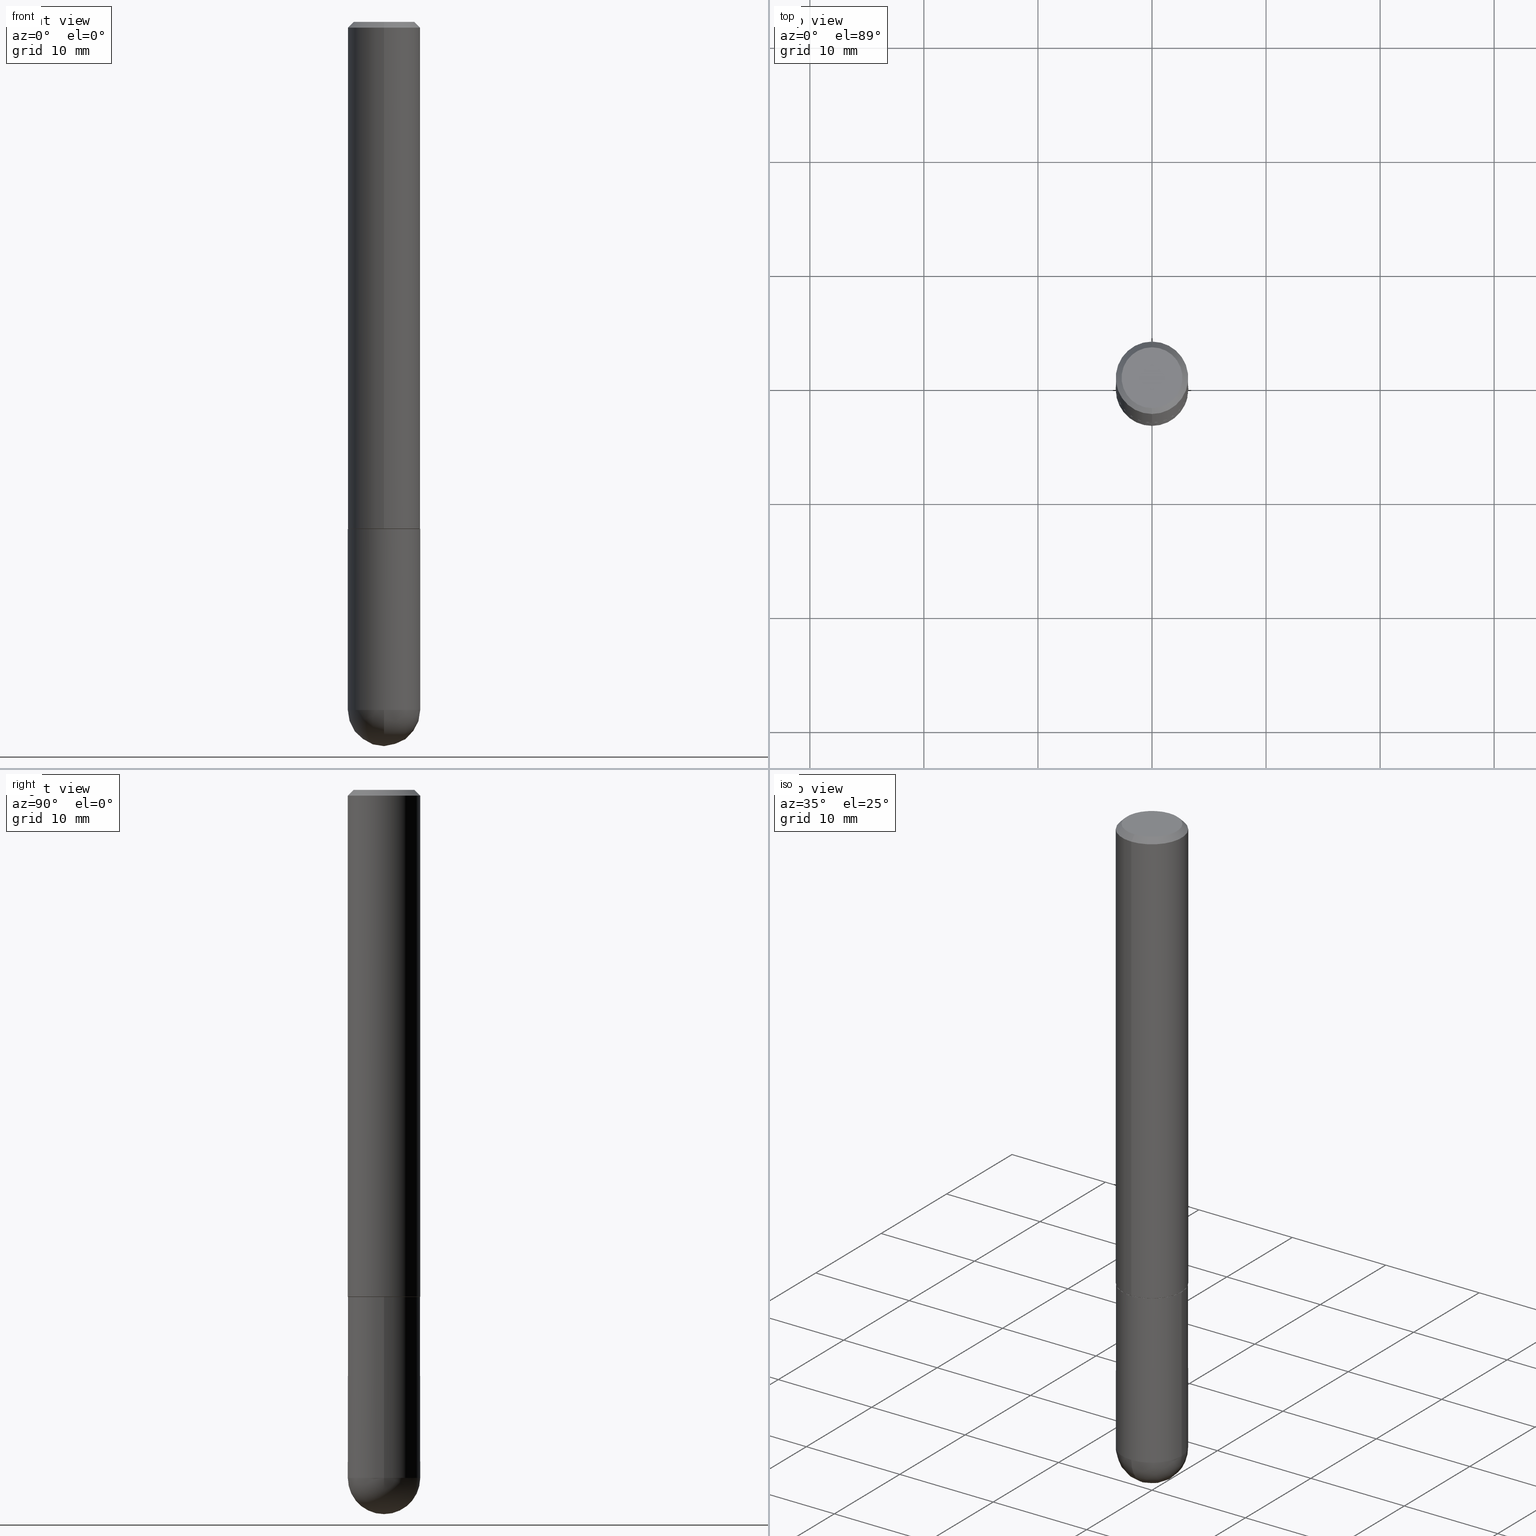
[diagram: canonical four-view strip — front | top / right | iso, engineering-drawing reading convention]
A machine part, canonical four-view strip (front | top / right | iso — engineering-drawing reading convention). The complete STEP part file that produces these views, byte-faithful:
ISO-10303-21;
HEADER;
FILE_DESCRIPTION (( 'STEP AP203' ),
    '1' );
FILE_NAME ('39532.STEP',
    '2024-02-21T19:45:11',
    ( '' ),
    ( '' ),
    'SwSTEP 2.0',
    'SolidWorks 2023',
    '' );
FILE_SCHEMA (( 'CONFIG_CONTROL_DESIGN' ));
ENDSEC;

DATA;
#1 = FACE_OUTER_BOUND ( 'NONE', #230, .T. ) ;
#2 = ORIENTED_EDGE ( 'NONE', *, *, #386, .F. ) ;
#3 = CARTESIAN_POINT ( 'NONE',  ( 5.807988414689700538E-29, -8.292268179752471696E-15, -2.375000000000000000 ) ) ;
#4 = DIRECTION ( 'NONE',  ( -6.982962677686267499E-15, -1.000000000000000000, 3.491141472859906642E-15 ) ) ;
#5 = DIRECTION ( 'NONE',  ( 1.000000000000000000, -6.982962677686262766E-15, 0.000000000000000000 ) ) ;
#6 = CIRCLE ( 'NONE', #160, 0.1250000000000000000 ) ;
#7 = EDGE_CURVE ( 'NONE', #180, #252, #326, .T. ) ;
#8 = APPROVAL_PERSON_ORGANIZATION ( #88, #215, #147 ) ;
#9 = ORIENTED_EDGE ( 'NONE', *, *, #95, .T. ) ;
#10 = CARTESIAN_POINT ( 'NONE',  ( 0.1250000000000000000, -8.728703347107833388E-16, 6.095220969744919741E-30 ) ) ;
#11 = DIRECTION ( 'NONE',  ( -6.982962677686265922E-15, -1.000000000000000000, 4.406206441393973340E-15 ) ) ;
#12 = EDGE_CURVE ( 'NONE', #319, #374, #354, .T. ) ;
#13 = EDGE_LOOP ( 'NONE', ( #100, #9 ) ) ;
#14 = AXIS2_PLACEMENT_3D ( 'NONE', #77, #150, #342 ) ;
#15 = CARTESIAN_POINT ( 'NONE',  ( 4.891412266665553962E-31, -6.982282945719821124E-17, -0.02000000000000002470 ) ) ;
#16 = CARTESIAN_POINT ( 'NONE',  ( 5.787897026856327965E-29, -9.195231672753244292E-15, -2.500000000000000444 ) ) ;
#17 = VERTEX_POINT ( 'NONE', #164 ) ;
#18 = DIRECTION ( 'NONE',  ( 1.000000000000000000, -6.982962677686270655E-15, 0.000000000000000000 ) ) ;
#19 = ORIENTED_EDGE ( 'NONE', *, *, #324, .T. ) ;
#20 = PERSON_AND_ORGANIZATION_ROLE ( 'creator' ) ;
#21 = CIRCLE ( 'NONE', #289, 0.1049999999999999684 ) ;
#22 = DIRECTION ( 'NONE',  ( -2.445706133332774021E-29, 3.491141472859906642E-15, 1.000000000000000000 ) ) ;
#23 = CC_DESIGN_SECURITY_CLASSIFICATION ( #396, ( #83 ) ) ;
#24 = PERSON_AND_ORGANIZATION ( #126, #55 ) ;
#25 = DIRECTION ( 'NONE',  ( 2.445706133332774021E-29, -3.491141472859906642E-15, -1.000000000000000000 ) ) ;
#26 = DESIGN_CONTEXT ( 'detailed design', #149, 'design' ) ;
#27 = SPHERICAL_SURFACE ( 'NONE', #355, 0.1250000000000001943 ) ;
#28 = CIRCLE ( 'NONE', #256, 0.1250000000000000000 ) ;
#29 = CC_DESIGN_APPROVAL ( #30, ( #334 ) ) ;
#30 = APPROVAL ( #91, 'UNSPECIFIED' ) ;
#31 = DATE_TIME_ROLE ( 'creation_date' ) ;
#32 = LINE ( 'NONE', #373, #272 ) ;
#33 = EDGE_LOOP ( 'NONE', ( #56, #64, #270, #314 ) ) ;
#34 = EDGE_CURVE ( 'NONE', #98, #17, #216, .T. ) ;
#35 = DIRECTION ( 'NONE',  ( -2.445706133332774021E-29, 3.491141472859906642E-15, 1.000000000000000000 ) ) ;
#36 = AXIS2_PLACEMENT_3D ( 'NONE', #393, #113, #49 ) ;
#37 = CONICAL_SURFACE ( 'NONE', #382, 0.1239999999999999991, 0.7853981633975336552 ) ;
#38 = DIRECTION ( 'NONE',  ( -6.982962677686265133E-15, -1.000000000000000000, 4.370956789862812472E-15 ) ) ;
#39 = FACE_OUTER_BOUND ( 'NONE', #391, .T. ) ;
#40 = FACE_OUTER_BOUND ( 'NONE', #383, .T. ) ;
#41 = CIRCLE ( 'NONE', #186, 0.1250000000000000000 ) ;
#42 = CYLINDRICAL_SURFACE ( 'NONE', #14, 0.1250000000000001110 ) ;
#43 = DIRECTION ( 'NONE',  ( -2.445706133332774021E-29, 3.491141472859906642E-15, 1.000000000000000000 ) ) ;
#44 = DIRECTION ( 'NONE',  ( 1.000000000000000000, -6.982962677686266711E-15, 4.876176775795935793E-29 ) ) ;
#45 = ORIENTED_EDGE ( 'NONE', *, *, #349, .T. ) ;
#46 = CARTESIAN_POINT ( 'NONE',  ( 8.846257060213682142E-16, 0.1239999999999938790, -1.750000000000000666 ) ) ;
#47 = AXIS2_PLACEMENT_3D ( 'NONE', #224, #35, #38 ) ;
#48 = VECTOR ( 'NONE', #169, 39.37007874015748143 ) ;
#49 = DIRECTION ( 'NONE',  ( -6.982962677686265922E-15, -1.000000000000000000, 4.406206441393973340E-15 ) ) ;
#50 = CARTESIAN_POINT ( 'NONE',  ( 5.807988414689700538E-29, -8.292268179752471696E-15, -2.375000000000000000 ) ) ;
#51 = DIRECTION ( 'NONE',  ( 1.000000000000000000, 0.000000000000000000, 0.000000000000000000 ) ) ;
#52 = LINE ( 'NONE', #84, #339 ) ;
#53 = CC_DESIGN_PERSON_AND_ORGANIZATION_ASSIGNMENT ( #24, #97, ( #334 ) ) ;
#54 = CLOSED_SHELL ( 'NONE', ( #162, #352, #207, #146, #394 ) ) ;
#55 = ORGANIZATION ( 'UNSPECIFIED', 'UNSPECIFIED', '' ) ;
#56 = ORIENTED_EDGE ( 'NONE', *, *, #211, .F. ) ;
#57 = SECURITY_CLASSIFICATION_LEVEL ( 'unclassified' ) ;
#58 = EDGE_CURVE ( 'NONE', #252, #59, #291, .T. ) ;
#59 = VERTEX_POINT ( 'NONE', #298 ) ;
#60 = FACE_OUTER_BOUND ( 'NONE', #33, .T. ) ;
#61 = DIRECTION ( 'NONE',  ( 0.000000000000000000, 0.000000000000000000, 1.000000000000000000 ) ) ;
#62 = DIRECTION ( 'NONE',  ( -1.000000000000000000, 6.982962677686265922E-15, -4.883557194083112901E-29 ) ) ;
#63 = CIRCLE ( 'NONE', #76, 0.1250000000000001943 ) ;
#64 = ORIENTED_EDGE ( 'NONE', *, *, #167, .T. ) ;
#65 = LOCAL_TIME ( 14, 45, 11.00000000000000000, #119 ) ;
#66 = CARTESIAN_POINT ( 'NONE',  ( -8.728703347107841277E-16, -0.1250000000000001110, 4.363926841074887247E-16 ) ) ;
#67 = ORIENTED_EDGE ( 'NONE', *, *, #268, .F. ) ;
#68 = SHAPE_DEFINITION_REPRESENTATION ( #404, #142 ) ;
#69 = DIRECTION ( 'NONE',  ( -2.445468806185136597E-29, 3.491481338843145583E-15, 1.000000000000000000 ) ) ;
#70 = FACE_OUTER_BOUND ( 'NONE', #118, .T. ) ;
#71 = AXIS2_PLACEMENT_3D ( 'NONE', #15, #397, #399 ) ;
#72 = ORIENTED_EDGE ( 'NONE', *, *, #233, .F. ) ;
#73 = ORIENTED_EDGE ( 'NONE', *, *, #349, .F. ) ;
#74 = ADVANCED_FACE ( 'NONE', ( #40 ), #144, .T. ) ;
#75 = CARTESIAN_POINT ( 'NONE',  ( 4.279985733332354606E-29, -6.109497577504836920E-15, -1.750000000000000222 ) ) ;
#76 = AXIS2_PLACEMENT_3D ( 'NONE', #300, #116, #81 ) ;
#77 = CARTESIAN_POINT ( 'NONE',  ( 0.000000000000000000, 0.000000000000000000, 0.000000000000000000 ) ) ;
#78 = CARTESIAN_POINT ( 'NONE',  ( 0.000000000000000000, 0.000000000000000000, 0.000000000000000000 ) ) ;
#79 = ORIENTED_EDGE ( 'NONE', *, *, #233, .T. ) ;
#80 = DIRECTION ( 'NONE',  ( -1.000000000000000000, 7.105427357601001070E-15, -4.926315508542082329E-29 ) ) ;
#81 = DIRECTION ( 'NONE',  ( 6.982962677686265133E-15, 1.000000000000000000, 0.000000000000000000 ) ) ;
#82 = DIRECTION ( 'NONE',  ( -2.445468806185136597E-29, 3.491481338843145583E-15, 1.000000000000000000 ) ) ;
#83 = PRODUCT_DEFINITION_FORMATION_WITH_SPECIFIED_SOURCE ( 'ANY', '', #392, .NOT_KNOWN. ) ;
#84 = CARTESIAN_POINT ( 'NONE',  ( 8.728703347107837333E-16, 0.1249999999999999306, -0.02000000000000046185 ) ) ;
#85 = ADVANCED_FACE ( 'NONE', ( #39 ), #257, .F. ) ;
#86 = COORDINATED_UNIVERSAL_TIME_OFFSET ( 5, 0, .BEHIND. ) ;
#87 = FACE_OUTER_BOUND ( 'NONE', #189, .T. ) ;
#88 = PERSON_AND_ORGANIZATION ( #126, #55 ) ;
#89 = ORIENTED_EDGE ( 'NONE', *, *, #194, .T. ) ;
#90 = EDGE_CURVE ( 'NONE', #59, #401, #6, .T. ) ;
#91 = APPROVAL_STATUS ( 'not_yet_approved' ) ;
#92 = AXIS2_PLACEMENT_3D ( 'NONE', #170, #112, #108 ) ;
#93 = ORIENTED_EDGE ( 'NONE', *, *, #58, .T. ) ;
#94 = DATE_AND_TIME ( #312, #327 ) ;
#95 = EDGE_CURVE ( 'NONE', #17, #98, #21, .T. ) ;
#96 = DIRECTION ( 'NONE',  ( -2.445468806185136597E-29, 3.491481338843145583E-15, 1.000000000000000000 ) ) ;
#97 = PERSON_AND_ORGANIZATION_ROLE ( 'creator' ) ;
#98 = VERTEX_POINT ( 'NONE', #328 ) ;
#99 = AXIS2_PLACEMENT_3D ( 'NONE', #390, #43, #353 ) ;
#100 = ORIENTED_EDGE ( 'NONE', *, *, #34, .T. ) ;
#101 = PRODUCT_RELATED_PRODUCT_CATEGORY ( 'detail', '', ( #392 ) ) ;
#102 = CARTESIAN_POINT ( 'NONE',  ( -1.043079944788907610E-45, 1.488952251920240630E-31, 4.264943897276400557E-17 ) ) ;
#103 = MANIFOLD_SOLID_BREP ( 'Body-Move/Copy2[1]', #54 ) ;
#104 = DIRECTION ( 'NONE',  ( 1.000000000000000000, -6.982962677686270655E-15, 0.000000000000000000 ) ) ;
#105 = CIRCLE ( 'NONE', #361, 0.1250000000000002498 ) ;
#106 = ORIENTED_EDGE ( 'NONE', *, *, #278, .T. ) ;
#107 = ORIENTED_EDGE ( 'NONE', *, *, #90, .F. ) ;
#108 = DIRECTION ( 'NONE',  ( 6.982962677686265922E-15, 1.000000000000000000, -3.491141472859906642E-15 ) ) ;
#109 = ADVANCED_FACE ( 'NONE', ( #70 ), #175, .T. ) ;
#110 = CIRCLE ( 'NONE', #210, 0.1250000000000001943 ) ;
#111 =( GEOMETRIC_REPRESENTATION_CONTEXT ( 3 ) GLOBAL_UNCERTAINTY_ASSIGNED_CONTEXT ( ( #358 ) ) GLOBAL_UNIT_ASSIGNED_CONTEXT ( ( #405, #409, #152 ) ) REPRESENTATION_CONTEXT ( 'NONE', 'WORKASPACE' ) );
#112 = DIRECTION ( 'NONE',  ( 2.445706133332773460E-29, -3.491141472859906642E-15, -1.000000000000000000 ) ) ;
#113 = DIRECTION ( 'NONE',  ( -2.445706133332774021E-29, 3.491141472859906642E-15, 1.000000000000000000 ) ) ;
#114 = DIRECTION ( 'NONE',  ( -6.982962677686265922E-15, -1.000000000000000000, 3.483106191921935554E-15 ) ) ;
#115 = LOCAL_TIME ( 14, 45, 11.00000000000000000, #124 ) ;
#116 = DIRECTION ( 'NONE',  ( 1.000000000000000000, -6.982962677686265922E-15, 4.883557194083112340E-29 ) ) ;
#117 = PERSON_AND_ORGANIZATION ( #126, #55 ) ;
#118 = EDGE_LOOP ( 'NONE', ( #79, #249, #73, #129 ) ) ;
#119 = COORDINATED_UNIVERSAL_TIME_OFFSET ( 5, 0, .BEHIND. ) ;
#120 = CIRCLE ( 'NONE', #133, 0.1239999999999999991 ) ;
#121 = ORIENTED_EDGE ( 'NONE', *, *, #356, .F. ) ;
#122 = PERSON_AND_ORGANIZATION ( #126, #55 ) ;
#123 = CARTESIAN_POINT ( 'NONE',  ( 4.277540027199021844E-29, -6.106006436031975850E-15, -1.749000000000000110 ) ) ;
#124 = COORDINATED_UNIVERSAL_TIME_OFFSET ( 5, 0, .BEHIND. ) ;
#125 = ORIENTED_EDGE ( 'NONE', *, *, #301, .F. ) ;
#126 = PERSON ( 'UNSPECIFIED', 'UNSPECIFIED', 'UNSPECIFIED', ('UNSPECIFIED'), ('UNSPECIFIED'), ('UNSPECIFIED') ) ;
#127 = CC_DESIGN_DATE_AND_TIME_ASSIGNMENT ( #292, #159, ( #396 ) ) ;
#128 = ORIENTED_EDGE ( 'NONE', *, *, #12, .T. ) ;
#129 = ORIENTED_EDGE ( 'NONE', *, *, #187, .F. ) ;
#130 = FACE_OUTER_BOUND ( 'NONE', #156, .T. ) ;
#131 = CC_DESIGN_PERSON_AND_ORGANIZATION_ASSIGNMENT ( #117, #340, ( #396 ) ) ;
#132 = DIRECTION ( 'NONE',  ( -2.445468806185136597E-29, 3.491481338843145583E-15, 1.000000000000000000 ) ) ;
#133 = AXIS2_PLACEMENT_3D ( 'NONE', #363, #370, #11 ) ;
#134 = ORIENTED_EDGE ( 'NONE', *, *, #268, .T. ) ;
#135 = DIRECTION ( 'NONE',  ( -2.445468806185136597E-29, 3.491481338843145583E-15, 1.000000000000000000 ) ) ;
#136 = DIRECTION ( 'NONE',  ( -1.000000000000000000, 6.982962677686265922E-15, -4.883557194083112901E-29 ) ) ;
#137 = CC_DESIGN_DATE_AND_TIME_ASSIGNMENT ( #214, #31, ( #334 ) ) ;
#138 = LOCAL_TIME ( 14, 45, 11.00000000000000000, #183 ) ;
#139 = DIRECTION ( 'NONE',  ( 1.000000000000000000, -6.982962677686270655E-15, 0.000000000000000000 ) ) ;
#140 = FACE_OUTER_BOUND ( 'NONE', #369, .T. ) ;
#141 = SPHERICAL_SURFACE ( 'NONE', #315, 0.1250000000000001943 ) ;
#142 = ADVANCED_BREP_SHAPE_REPRESENTATION ( '39532', ( #103, #241, #191 ), #111 ) ;
#143 = CARTESIAN_POINT ( 'NONE',  ( 5.476868636775814291E-29, -8.766450547892521992E-15, -2.375000000000000000 ) ) ;
#144 = CONICAL_SURFACE ( 'NONE', #271, 0.1250000000000000000, 0.7853981633974472798 ) ;
#145 = CIRCLE ( 'NONE', #202, 0.1250000000000000000 ) ;
#146 = ADVANCED_FACE ( 'NONE', ( #130 ), #226, .F. ) ;
#147 = APPROVAL_ROLE ( '' ) ;
#148 = ORIENTED_EDGE ( 'NONE', *, *, #228, .T. ) ;
#149 = APPLICATION_CONTEXT ( 'configuration controlled 3d designs of mechanical parts and assemblies' ) ;
#150 = DIRECTION ( 'NONE',  ( -2.445706133332774021E-29, 3.491141472859906642E-15, 1.000000000000000000 ) ) ;
#151 = ORIENTED_EDGE ( 'NONE', *, *, #372, .F. ) ;
#152 =( NAMED_UNIT ( * ) SI_UNIT ( $, .STERADIAN. ) SOLID_ANGLE_UNIT ( ) );
#153 = AXIS2_PLACEMENT_3D ( 'NONE', #75, #385, #293 ) ;
#154 = DIRECTION ( 'NONE',  ( 6.982962677686265922E-15, 1.000000000000000000, -4.370956789862814839E-15 ) ) ;
#155 = APPROVAL_PERSON_ORGANIZATION ( #345, #30, #403 ) ;
#156 = EDGE_LOOP ( 'NONE', ( #219, #323 ) ) ;
#157 = VERTEX_POINT ( 'NONE', #254 ) ;
#158 = ORIENTED_EDGE ( 'NONE', *, *, #7, .T. ) ;
#159 = DATE_TIME_ROLE ( 'classification_date' ) ;
#160 = AXIS2_PLACEMENT_3D ( 'NONE', #195, #69, #5 ) ;
#161 = EDGE_LOOP ( 'NONE', ( #125, #380, #277, #344 ) ) ;
#162 = ADVANCED_FACE ( 'NONE', ( #359 ), #325, .T. ) ;
#163 = DIRECTION ( 'NONE',  ( -6.982962677686267499E-15, -1.000000000000000000, 3.491141472859906642E-15 ) ) ;
#164 = CARTESIAN_POINT ( 'NONE',  ( -7.889572697437258181E-16, -0.1049999999999999684, 4.092192936230540876E-16 ) ) ;
#165 = DIRECTION ( 'NONE',  ( -2.445706133332774021E-29, 3.491141472859906642E-15, 1.000000000000000000 ) ) ;
#166 = CC_DESIGN_APPROVAL ( #247, ( #396 ) ) ;
#167 = EDGE_CURVE ( 'NONE', #190, #157, #110, .T. ) ;
#168 = CARTESIAN_POINT ( 'NONE',  ( 8.728703347108260359E-16, 0.1249999999999938799, -1.750000000000000666 ) ) ;
#169 = DIRECTION ( 'NONE',  ( 5.024295867788490741E-15, 0.7071067811866103003, 0.7071067811864847341 ) ) ;
#170 = CARTESIAN_POINT ( 'NONE',  ( 7.332110811570578271E-16, 0.1049999999999999684, -3.452451351639080670E-16 ) ) ;
#171 = CLOSED_SHELL ( 'NONE', ( #109, #260, #74, #347, #398, #309, #85, #196 ) ) ;
#172 = CARTESIAN_POINT ( 'NONE',  ( 8.728703347108403340E-16, 0.1249999999999915623, -2.375000000000000888 ) ) ;
#173 = LINE ( 'NONE', #197, #48 ) ;
#174 = PERSON_AND_ORGANIZATION_ROLE ( 'design_owner' ) ;
#175 = CONICAL_SURFACE ( 'NONE', #99, 0.1239999999999999991, 0.7853981633975336552 ) ;
#176 = LENGTH_MEASURE_WITH_UNIT ( LENGTH_MEASURE( 0.02539999999999999897 ), #240 );
#177 = ORIENTED_EDGE ( 'NONE', *, *, #278, .F. ) ;
#178 = COORDINATED_UNIVERSAL_TIME_OFFSET ( 5, 0, .BEHIND. ) ;
#179 = FACE_OUTER_BOUND ( 'NONE', #161, .T. ) ;
#180 = VERTEX_POINT ( 'NONE', #172 ) ;
#181 = CARTESIAN_POINT ( 'NONE',  ( 4.279570410823989044E-29, -6.110092342975505460E-15, -1.750000000000000222 ) ) ;
#182 = ORIENTED_EDGE ( 'NONE', *, *, #274, .F. ) ;
#183 = COORDINATED_UNIVERSAL_TIME_OFFSET ( 5, 0, .BEHIND. ) ;
#184 = AXIS2_PLACEMENT_3D ( 'NONE', #3, #132, #104 ) ;
#185 = DIRECTION ( 'NONE',  ( 1.000000000000000000, -6.982962677686262766E-15, 0.000000000000000000 ) ) ;
#186 = AXIS2_PLACEMENT_3D ( 'NONE', #181, #346, #185 ) ;
#187 = EDGE_CURVE ( 'NONE', #209, #374, #262, .T. ) ;
#188 = DIRECTION ( 'NONE',  ( -2.445706133332773740E-29, 3.491141472859906642E-15, 1.000000000000000000 ) ) ;
#189 = EDGE_LOOP ( 'NONE', ( #45, #318, #177, #2 ) ) ;
#190 = VERTEX_POINT ( 'NONE', #16 ) ;
#191 = AXIS2_PLACEMENT_3D ( 'NONE', #335, #61, #51 ) ;
#192 = CARTESIAN_POINT ( 'NONE',  ( -1.043079944788907610E-45, 1.488952251920240630E-31, 4.264943897276400557E-17 ) ) ;
#193 = DIRECTION ( 'NONE',  ( -1.000000000000000000, 6.982962677686265922E-15, -4.876176775795935793E-29 ) ) ;
#194 = EDGE_CURVE ( 'NONE', #243, #209, #395, .T. ) ;
#195 = CARTESIAN_POINT ( 'NONE',  ( 4.279570410823989044E-29, -6.110092342975505460E-15, -1.750000000000000222 ) ) ;
#196 = ADVANCED_FACE ( 'NONE', ( #266 ), #329, .F. ) ;
#197 = CARTESIAN_POINT ( 'NONE',  ( 8.810729923425669213E-16, 0.1239999999999938790, -1.750000000000000666 ) ) ;
#198 = EDGE_CURVE ( 'NONE', #321, #288, #28, .T. ) ;
#199 = CARTESIAN_POINT ( 'NONE',  ( 5.476868636775814291E-29, -8.766450547892521992E-15, -2.375000000000000000 ) ) ;
#200 = DIRECTION ( 'NONE',  ( -7.105427357601000281E-15, -1.000000000000000000, 0.000000000000000000 ) ) ;
#201 = CC_DESIGN_PERSON_AND_ORGANIZATION_ASSIGNMENT ( #122, #174, ( #392 ) ) ;
#202 = AXIS2_PLACEMENT_3D ( 'NONE', #313, #96, #343 ) ;
#203 = CARTESIAN_POINT ( 'NONE',  ( -8.575622497214408537E-16, -0.1250000000000000555, -0.01999999999999959102 ) ) ;
#204 = ORIENTED_EDGE ( 'NONE', *, *, #280, .F. ) ;
#205 = APPLICATION_CONTEXT ( 'configuration controlled 3d designs of mechanical parts and assemblies' ) ;
#206 = DIRECTION ( 'NONE',  ( 4.937700262164542520E-15, 0.7071067811865443531, -0.7071067811865506814 ) ) ;
#207 = ADVANCED_FACE ( 'NONE', ( #229 ), #141, .T. ) ;
#208 = APPROVAL_STATUS ( 'not_yet_approved' ) ;
#209 = VERTEX_POINT ( 'NONE', #232 ) ;
#210 = AXIS2_PLACEMENT_3D ( 'NONE', #199, #80, #200 ) ;
#211 = EDGE_CURVE ( 'NONE', #190, #180, #63, .T. ) ;
#212 = FACE_OUTER_BOUND ( 'NONE', #410, .T. ) ;
#213 = ORIENTED_EDGE ( 'NONE', *, *, #194, .F. ) ;
#214 = DATE_AND_TIME ( #307, #138 ) ;
#215 = APPROVAL ( #208, 'UNSPECIFIED' ) ;
#216 = CIRCLE ( 'NONE', #367, 0.1049999999999999684 ) ;
#217 = CIRCLE ( 'NONE', #265, 0.1250000000000000000 ) ;
#218 = CARTESIAN_POINT ( 'NONE',  ( 0.1250000000000000000, -8.074050596074771916E-15, -2.375000000000000000 ) ) ;
#219 = ORIENTED_EDGE ( 'NONE', *, *, #356, .T. ) ;
#220 = CC_DESIGN_PERSON_AND_ORGANIZATION_ASSIGNMENT ( #411, #376, ( #83 ) ) ;
#221 = CALENDAR_DATE ( 2024, 21, 2 ) ;
#222 = CARTESIAN_POINT ( 'NONE',  ( -0.1250000000000000000, 8.881784197001252323E-16, -6.148668862818632227E-30 ) ) ;
#223 = APPROVAL_DATE_TIME ( #320, #247 ) ;
#224 = CARTESIAN_POINT ( 'NONE',  ( 4.277540027199021844E-29, -6.106006436031975850E-15, -1.749000000000000110 ) ) ;
#225 = VECTOR ( 'NONE', #299, 39.37007874015748143 ) ;
#226 = PLANE ( 'NONE',  #251 ) ;
#227 = DIRECTION ( 'NONE',  ( -2.445468806185136877E-29, 3.491481338843145188E-15, 1.000000000000000000 ) ) ;
#228 = EDGE_CURVE ( 'NONE', #252, #157, #281, .T. ) ;
#229 = FACE_OUTER_BOUND ( 'NONE', #333, .T. ) ;
#230 = EDGE_LOOP ( 'NONE', ( #283, #148, #302, #134, #107 ) ) ;
#231 = EDGE_CURVE ( 'NONE', #157, #341, #217, .T. ) ;
#232 = CARTESIAN_POINT ( 'NONE',  ( -8.658873720330540358E-16, -0.1240000000000061053, -1.749999999999999556 ) ) ;
#233 = EDGE_CURVE ( 'NONE', #209, #243, #120, .T. ) ;
#234 = CARTESIAN_POINT ( 'NONE',  ( 0.000000000000000000, 0.000000000000000000, 0.000000000000000000 ) ) ;
#235 = DIRECTION ( 'NONE',  ( -6.982962677686266711E-15, -1.000000000000000000, 3.491141472859906642E-15 ) ) ;
#236 = APPROVAL_PERSON_ORGANIZATION ( #296, #247, #384 ) ;
#237 = LOCAL_TIME ( 14, 45, 11.00000000000000000, #178 ) ;
#238 = PERSON_AND_ORGANIZATION ( #126, #55 ) ;
#239 = CARTESIAN_POINT ( 'NONE',  ( 4.891412266665553962E-31, -6.982282945719821124E-17, -0.02000000000000002470 ) ) ;
#240 =( LENGTH_UNIT ( ) NAMED_UNIT ( * ) SI_UNIT ( $, .METRE. ) );
#241 = MANIFOLD_SOLID_BREP ( 'Body-Move/Copy2[2]', #171 ) ;
#242 = CARTESIAN_POINT ( 'NONE',  ( 8.881784197001479121E-16, 0.1249999999999941019, -1.749000000000000554 ) ) ;
#243 = VERTEX_POINT ( 'NONE', #46 ) ;
#244 = DATE_AND_TIME ( #407, #65 ) ;
#245 = AXIS2_PLACEMENT_3D ( 'NONE', #50, #267, #139 ) ;
#246 = APPLICATION_PROTOCOL_DEFINITION ( 'international standard', 'config_control_design', 1994, #149 ) ;
#247 = APPROVAL ( #287, 'UNSPECIFIED' ) ;
#248 = DIRECTION ( 'NONE',  ( -2.445706133332774021E-29, 3.491141472859906642E-15, 1.000000000000000000 ) ) ;
#249 = ORIENTED_EDGE ( 'NONE', *, *, #274, .T. ) ;
#250 = ORIENTED_EDGE ( 'NONE', *, *, #12, .F. ) ;
#251 = AXIS2_PLACEMENT_3D ( 'NONE', #168, #357, #193 ) ;
#252 = VERTEX_POINT ( 'NONE', #269 ) ;
#253 = ORIENTED_EDGE ( 'NONE', *, *, #187, .T. ) ;
#254 = CARTESIAN_POINT ( 'NONE',  ( -8.881784197000694204E-16, -0.1250000000000086320, -2.374999999999999556 ) ) ;
#255 = CARTESIAN_POINT ( 'NONE',  ( 0.000000000000000000, 0.000000000000000000, 0.000000000000000000 ) ) ;
#256 = AXIS2_PLACEMENT_3D ( 'NONE', #239, #364, #114 ) ;
#257 = PLANE ( 'NONE',  #153 ) ;
#258 = VECTOR ( 'NONE', #188, 39.37007874015748143 ) ;
#259 = LINE ( 'NONE', #66, #258 ) ;
#260 = ADVANCED_FACE ( 'NONE', ( #87 ), #400, .T. ) ;
#261 = EDGE_LOOP ( 'NONE', ( #158, #93, #121, #67, #19 ) ) ;
#262 = LINE ( 'NONE', #306, #365 ) ;
#263 = CARTESIAN_POINT ( 'NONE',  ( 5.807988414689700538E-29, -8.292268179752471696E-15, -2.375000000000000000 ) ) ;
#264 = VECTOR ( 'NONE', #227, 39.37007874015748143 ) ;
#265 = AXIS2_PLACEMENT_3D ( 'NONE', #263, #331, #18 ) ;
#266 = FACE_OUTER_BOUND ( 'NONE', #13, .T. ) ;
#267 = DIRECTION ( 'NONE',  ( -2.445468806185136597E-29, 3.491481338843145583E-15, 1.000000000000000000 ) ) ;
#268 = EDGE_CURVE ( 'NONE', #341, #401, #362, .T. ) ;
#269 = CARTESIAN_POINT ( 'NONE',  ( -0.1250000000000000000, -6.313001841663864134E-15, -2.375000000000000000 ) ) ;
#270 = ORIENTED_EDGE ( 'NONE', *, *, #228, .F. ) ;
#271 = AXIS2_PLACEMENT_3D ( 'NONE', #295, #351, #360 ) ;
#272 = VECTOR ( 'NONE', #294, 39.37007874015748143 ) ;
#273 = CARTESIAN_POINT ( 'NONE',  ( 5.476868636775814291E-29, -8.766450547892521992E-15, -2.375000000000000000 ) ) ;
#274 = EDGE_CURVE ( 'NONE', #243, #319, #173, .T. ) ;
#275 = CARTESIAN_POINT ( 'NONE',  ( 0.1250000000000000000, -6.982962677686288010E-15, -1.750000000000000222 ) ) ;
#276 = CARTESIAN_POINT ( 'NONE',  ( 4.279985733332354606E-29, -6.109497577504836920E-15, -1.750000000000000222 ) ) ;
#277 = ORIENTED_EDGE ( 'NONE', *, *, #280, .T. ) ;
#278 = EDGE_CURVE ( 'NONE', #288, #321, #389, .T. ) ;
#279 = ORIENTED_EDGE ( 'NONE', *, *, #198, .F. ) ;
#280 = EDGE_CURVE ( 'NONE', #98, #321, #52, .T. ) ;
#281 = CIRCLE ( 'NONE', #245, 0.1250000000000000000 ) ;
#282 = MECHANICAL_CONTEXT ( 'NONE', #205, 'mechanical' ) ;
#283 = ORIENTED_EDGE ( 'NONE', *, *, #58, .F. ) ;
#284 = APPROVAL_DATE_TIME ( #244, #215 ) ;
#285 = DIRECTION ( 'NONE',  ( -6.982962677686265922E-15, -1.000000000000000000, 4.406206441393973340E-15 ) ) ;
#286 = ORIENTED_EDGE ( 'NONE', *, *, #231, .F. ) ;
#287 = APPROVAL_STATUS ( 'not_yet_approved' ) ;
#288 = VERTEX_POINT ( 'NONE', #203 ) ;
#289 = AXIS2_PLACEMENT_3D ( 'NONE', #102, #165, #4 ) ;
#290 = AXIS2_PLACEMENT_3D ( 'NONE', #78, #303, #235 ) ;
#291 = LINE ( 'NONE', #222, #264 ) ;
#292 = DATE_AND_TIME ( #310, #237 ) ;
#293 = DIRECTION ( 'NONE',  ( -6.982962677686265922E-15, -1.000000000000000000, 3.491141472859906642E-15 ) ) ;
#294 = DIRECTION ( 'NONE',  ( -2.445706133332773740E-29, 3.491141472859906642E-15, 1.000000000000000000 ) ) ;
#295 = CARTESIAN_POINT ( 'NONE',  ( 4.891412266665553962E-31, -6.982282945719821124E-17, -0.02000000000000002470 ) ) ;
#296 = PERSON_AND_ORGANIZATION ( #126, #55 ) ;
#297 = CC_DESIGN_APPROVAL ( #215, ( #83 ) ) ;
#298 = CARTESIAN_POINT ( 'NONE',  ( -0.1250000000000000000, -6.313001841663863345E-15, -1.750000000000000222 ) ) ;
#299 = DIRECTION ( 'NONE',  ( -4.851104656540958753E-15, -0.7071067811865492381, -0.7071067811865457964 ) ) ;
#300 = CARTESIAN_POINT ( 'NONE',  ( 5.476868636775814291E-29, -8.766450547892521992E-15, -2.375000000000000000 ) ) ;
#301 = EDGE_CURVE ( 'NONE', #17, #288, #332, .T. ) ;
#302 = ORIENTED_EDGE ( 'NONE', *, *, #231, .T. ) ;
#303 = DIRECTION ( 'NONE',  ( -2.445706133332774021E-29, 3.491141472859906642E-15, 1.000000000000000000 ) ) ;
#304 = AXIS2_PLACEMENT_3D ( 'NONE', #311, #25, #412 ) ;
#305 = DIRECTION ( 'NONE',  ( 1.000000000000000000, -6.982962677686266711E-15, 4.876176775795935793E-29 ) ) ;
#306 = CARTESIAN_POINT ( 'NONE',  ( -8.658873720330540358E-16, -0.1240000000000061053, -1.749999999999999556 ) ) ;
#307 = CALENDAR_DATE ( 2024, 21, 2 ) ;
#308 = AXIS2_PLACEMENT_3D ( 'NONE', #234, #135, #44 ) ;
#309 = ADVANCED_FACE ( 'NONE', ( #212 ), #37, .T. ) ;
#310 = CALENDAR_DATE ( 2024, 21, 2 ) ;
#311 = CARTESIAN_POINT ( 'NONE',  ( 4.891412266665553962E-31, -6.982282945719821124E-17, -0.02000000000000002470 ) ) ;
#312 = CALENDAR_DATE ( 2024, 21, 2 ) ;
#313 = CARTESIAN_POINT ( 'NONE',  ( 5.807988414689700538E-29, -8.292268179752471696E-15, -2.375000000000000000 ) ) ;
#314 = ORIENTED_EDGE ( 'NONE', *, *, #7, .F. ) ;
#315 = AXIS2_PLACEMENT_3D ( 'NONE', #143, #136, #330 ) ;
#316 = CONICAL_SURFACE ( 'NONE', #304, 0.1250000000000000000, 0.7853981633974472798 ) ;
#317 = APPLICATION_PROTOCOL_DEFINITION ( 'international standard', 'config_control_design', 1994, #205 ) ;
#318 = ORIENTED_EDGE ( 'NONE', *, *, #372, .T. ) ;
#319 = VERTEX_POINT ( 'NONE', #242 ) ;
#320 = DATE_AND_TIME ( #221, #115 ) ;
#321 = VERTEX_POINT ( 'NONE', #379 ) ;
#322 = DIRECTION ( 'NONE',  ( -2.445706133332774021E-29, 3.491141472859906642E-15, 1.000000000000000000 ) ) ;
#323 = ORIENTED_EDGE ( 'NONE', *, *, #90, .T. ) ;
#324 = EDGE_CURVE ( 'NONE', #341, #180, #145, .T. ) ;
#325 = CYLINDRICAL_SURFACE ( 'NONE', #308, 0.1250000000000000000 ) ;
#326 = CIRCLE ( 'NONE', #184, 0.1250000000000000000 ) ;
#327 = LOCAL_TIME ( 14, 45, 11.00000000000000000, #86 ) ;
#328 = CARTESIAN_POINT ( 'NONE',  ( 8.030407079339207309E-16, 0.1049999999999999684, -3.239204156775260765E-16 ) ) ;
#329 = PLANE ( 'NONE',  #92 ) ;
#330 = DIRECTION ( 'NONE',  ( 6.982962677686265922E-15, 1.000000000000000000, -4.370956789862814839E-15 ) ) ;
#331 = DIRECTION ( 'NONE',  ( -2.445468806185136597E-29, 3.491481338843145583E-15, 1.000000000000000000 ) ) ;
#332 = LINE ( 'NONE', #336, #225 ) ;
#333 = EDGE_LOOP ( 'NONE', ( #338, #388, #377, #286 ) ) ;
#334 = PRODUCT_DEFINITION ( 'UNKNOWN', '', #83, #26 ) ;
#335 = CARTESIAN_POINT ( 'NONE',  ( 0.000000000000000000, 0.000000000000000000, 0.000000000000000000 ) ) ;
#336 = CARTESIAN_POINT ( 'NONE',  ( -8.575622497214408537E-16, -0.1250000000000000555, -0.01999999999999959102 ) ) ;
#337 = APPROVAL_DATE_TIME ( #94, #30 ) ;
#338 = ORIENTED_EDGE ( 'NONE', *, *, #167, .F. ) ;
#339 = VECTOR ( 'NONE', #206, 39.37007874015748143 ) ;
#340 = PERSON_AND_ORGANIZATION_ROLE ( 'classification_officer' ) ;
#341 = VERTEX_POINT ( 'NONE', #218 ) ;
#342 = DIRECTION ( 'NONE',  ( -6.982962677686266711E-15, -1.000000000000000000, 3.491141472859906642E-15 ) ) ;
#343 = DIRECTION ( 'NONE',  ( 1.000000000000000000, -6.982962677686270655E-15, 0.000000000000000000 ) ) ;
#344 = ORIENTED_EDGE ( 'NONE', *, *, #198, .T. ) ;
#345 = PERSON_AND_ORGANIZATION ( #126, #55 ) ;
#346 = DIRECTION ( 'NONE',  ( -2.445468806185136597E-29, 3.491481338843145583E-15, 1.000000000000000000 ) ) ;
#347 = ADVANCED_FACE ( 'NONE', ( #179 ), #316, .T. ) ;
#348 = ORIENTED_EDGE ( 'NONE', *, *, #95, .F. ) ;
#349 = EDGE_CURVE ( 'NONE', #374, #319, #105, .T. ) ;
#350 = CARTESIAN_POINT ( 'NONE',  ( -8.728703347107421208E-16, -0.1250000000000063560, -1.748999999999999666 ) ) ;
#351 = DIRECTION ( 'NONE',  ( 2.445706133332774021E-29, -3.491141472859906642E-15, -1.000000000000000000 ) ) ;
#352 = ADVANCED_FACE ( 'NONE', ( #60 ), #27, .T. ) ;
#353 = DIRECTION ( 'NONE',  ( -6.982962677686265922E-15, -1.000000000000000000, 4.406206441393973340E-15 ) ) ;
#354 = CIRCLE ( 'NONE', #47, 0.1250000000000002498 ) ;
#355 = AXIS2_PLACEMENT_3D ( 'NONE', #273, #62, #154 ) ;
#356 = EDGE_CURVE ( 'NONE', #401, #59, #41, .T. ) ;
#357 = DIRECTION ( 'NONE',  ( 2.438088387897960049E-29, -3.491481338843145188E-15, -1.000000000000000000 ) ) ;
#358 = UNCERTAINTY_MEASURE_WITH_UNIT (LENGTH_MEASURE( 1.000000000000000082E-05 ), #405, 'distance_accuracy_value', 'NONE');
#359 = FACE_OUTER_BOUND ( 'NONE', #261, .T. ) ;
#360 = DIRECTION ( 'NONE',  ( 6.982962677686265922E-15, 1.000000000000000000, -3.483106191921935554E-15 ) ) ;
#361 = AXIS2_PLACEMENT_3D ( 'NONE', #123, #248, #381 ) ;
#362 = LINE ( 'NONE', #10, #368 ) ;
#363 = CARTESIAN_POINT ( 'NONE',  ( 4.279985733332354606E-29, -6.109497577504836920E-15, -1.750000000000000222 ) ) ;
#364 = DIRECTION ( 'NONE',  ( -2.445706133332774021E-29, 3.491141472859906642E-15, 1.000000000000000000 ) ) ;
#365 = VECTOR ( 'NONE', #402, 39.37007874015748143 ) ;
#366 = DIRECTION ( 'NONE',  ( -2.445468806185136877E-29, 3.491481338843145188E-15, 1.000000000000000000 ) ) ;
#367 = AXIS2_PLACEMENT_3D ( 'NONE', #192, #322, #163 ) ;
#368 = VECTOR ( 'NONE', #366, 39.37007874015748143 ) ;
#369 = EDGE_LOOP ( 'NONE', ( #151, #128, #408, #279 ) ) ;
#370 = DIRECTION ( 'NONE',  ( -2.445706133332774021E-29, 3.491141472859906642E-15, 1.000000000000000000 ) ) ;
#371 = DIMENSIONAL_EXPONENTS ( 1.000000000000000000, 0.000000000000000000, 0.000000000000000000, 0.000000000000000000, 0.000000000000000000, 0.000000000000000000, 0.000000000000000000 ) ;
#372 = EDGE_CURVE ( 'NONE', #319, #321, #32, .T. ) ;
#373 = CARTESIAN_POINT ( 'NONE',  ( 8.881784197001260212E-16, 0.1250000000000001110, -4.363926841074887247E-16 ) ) ;
#374 = VERTEX_POINT ( 'NONE', #350 ) ;
#375 = CC_DESIGN_PERSON_AND_ORGANIZATION_ASSIGNMENT ( #238, #20, ( #83 ) ) ;
#376 = PERSON_AND_ORGANIZATION_ROLE ( 'design_supplier' ) ;
#377 = ORIENTED_EDGE ( 'NONE', *, *, #324, .F. ) ;
#378 = AXIS2_PLACEMENT_3D ( 'NONE', #255, #82, #305 ) ;
#379 = CARTESIAN_POINT ( 'NONE',  ( 8.728703347107837333E-16, 0.1249999999999999306, -0.02000000000000046185 ) ) ;
#380 = ORIENTED_EDGE ( 'NONE', *, *, #34, .F. ) ;
#381 = DIRECTION ( 'NONE',  ( -6.982962677686265133E-15, -1.000000000000000000, 4.370956789862812472E-15 ) ) ;
#382 = AXIS2_PLACEMENT_3D ( 'NONE', #276, #22, #285 ) ;
#383 = EDGE_LOOP ( 'NONE', ( #348, #406, #106, #204 ) ) ;
#384 = APPROVAL_ROLE ( '' ) ;
#385 = DIRECTION ( 'NONE',  ( -2.445706133332773460E-29, 3.491141472859906642E-15, 1.000000000000000000 ) ) ;
#386 = EDGE_CURVE ( 'NONE', #374, #288, #259, .T. ) ;
#387 = CYLINDRICAL_SURFACE ( 'NONE', #378, 0.1250000000000000000 ) ;
#388 = ORIENTED_EDGE ( 'NONE', *, *, #211, .T. ) ;
#389 = CIRCLE ( 'NONE', #71, 0.1250000000000000000 ) ;
#390 = CARTESIAN_POINT ( 'NONE',  ( 4.279985733332354606E-29, -6.109497577504836920E-15, -1.750000000000000222 ) ) ;
#391 = EDGE_LOOP ( 'NONE', ( #72, #213 ) ) ;
#392 = PRODUCT ( '39532', '39532', '', ( #282 ) ) ;
#393 = CARTESIAN_POINT ( 'NONE',  ( 4.279985733332354606E-29, -6.109497577504836920E-15, -1.750000000000000222 ) ) ;
#394 = ADVANCED_FACE ( 'NONE', ( #1 ), #387, .T. ) ;
#395 = CIRCLE ( 'NONE', #36, 0.1239999999999999991 ) ;
#396 = SECURITY_CLASSIFICATION ( '', '', #57 ) ;
#397 = DIRECTION ( 'NONE',  ( -2.445706133332774021E-29, 3.491141472859906642E-15, 1.000000000000000000 ) ) ;
#398 = ADVANCED_FACE ( 'NONE', ( #140 ), #42, .T. ) ;
#399 = DIRECTION ( 'NONE',  ( -6.982962677686265922E-15, -1.000000000000000000, 3.483106191921935554E-15 ) ) ;
#400 = CYLINDRICAL_SURFACE ( 'NONE', #290, 0.1250000000000001110 ) ;
#401 = VERTEX_POINT ( 'NONE', #275 ) ;
#402 = DIRECTION ( 'NONE',  ( -4.937700262164969294E-15, -0.7071067811866054154, 0.7071067811864896191 ) ) ;
#403 = APPROVAL_ROLE ( '' ) ;
#404 = PRODUCT_DEFINITION_SHAPE ( 'NONE', 'NONE',  #334 ) ;
#405 =( CONVERSION_BASED_UNIT ( 'INCH', #176 ) LENGTH_UNIT ( ) NAMED_UNIT ( #371 ) );
#406 = ORIENTED_EDGE ( 'NONE', *, *, #301, .T. ) ;
#407 = CALENDAR_DATE ( 2024, 21, 2 ) ;
#408 = ORIENTED_EDGE ( 'NONE', *, *, #386, .T. ) ;
#409 =( NAMED_UNIT ( * ) PLANE_ANGLE_UNIT ( ) SI_UNIT ( $, .RADIAN. ) );
#410 = EDGE_LOOP ( 'NONE', ( #182, #89, #253, #250 ) ) ;
#411 = PERSON_AND_ORGANIZATION ( #126, #55 ) ;
#412 = DIRECTION ( 'NONE',  ( 6.982962677686265922E-15, 1.000000000000000000, -3.483106191921935554E-15 ) ) ;
ENDSEC;
END-ISO-10303-21;
